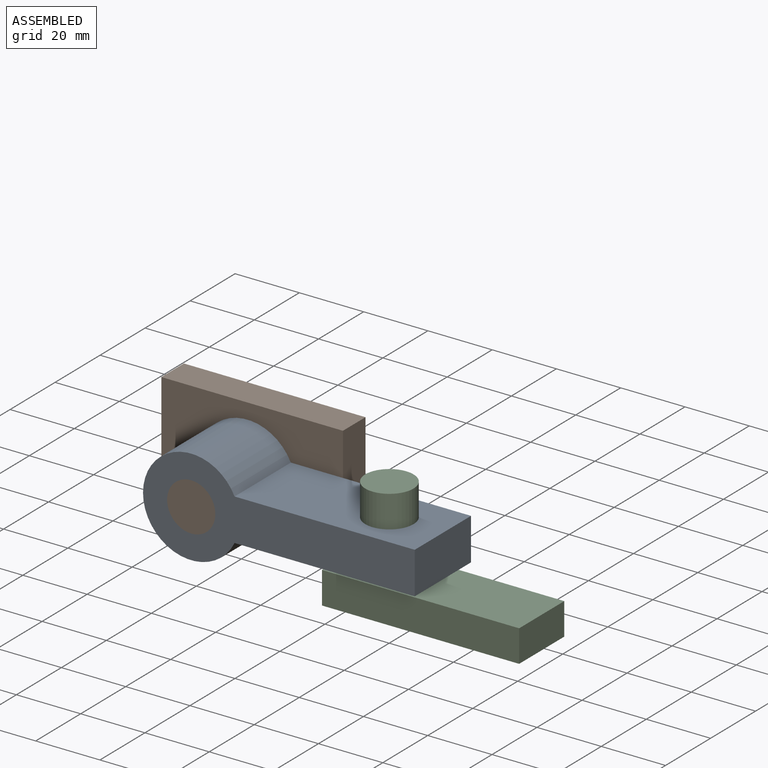
[diagram: assembled view]
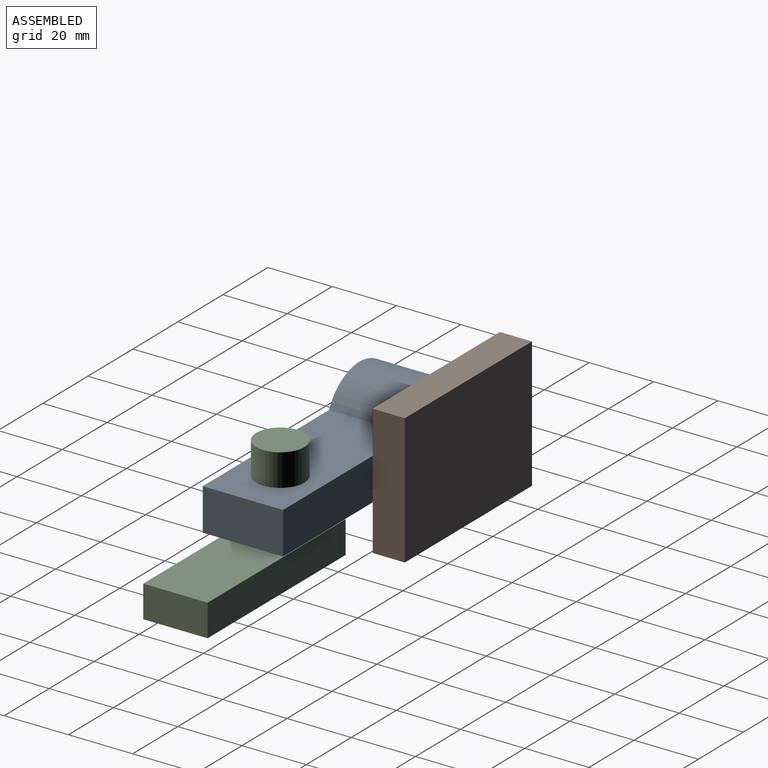
[diagram: assembled view, second angle]
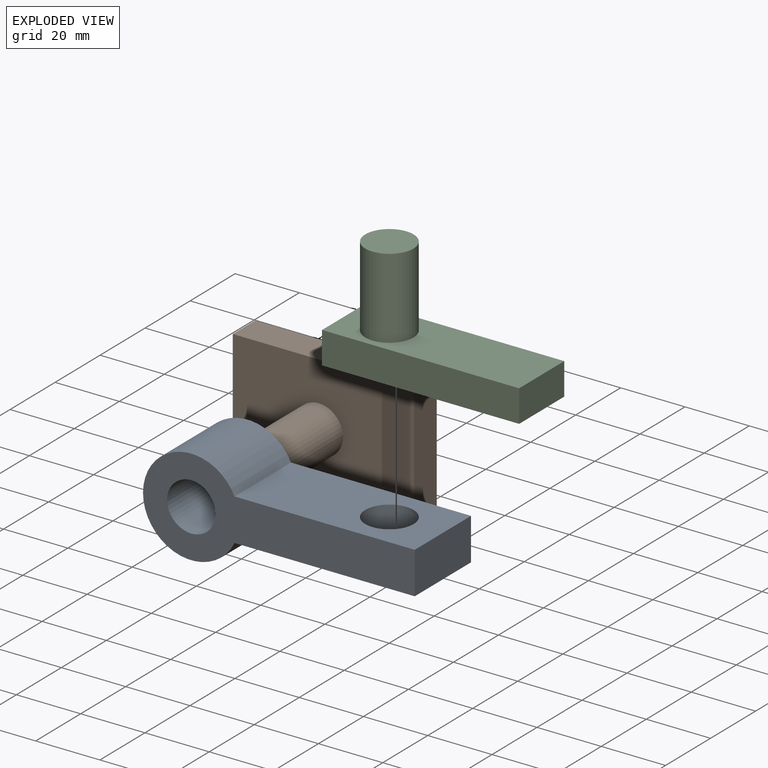
[diagram: exploded view]
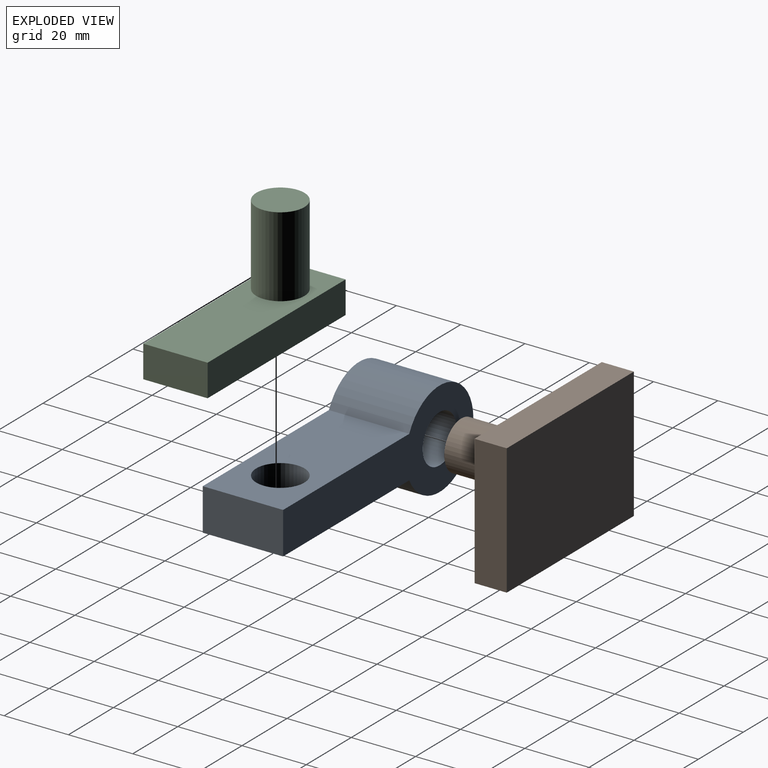
[diagram: exploded view, second angle]
ASSEMBLY  parts=3 mates=2
PART A: 8 faces, bbox 84.6x25x30 mm
  f0: cylinder r=7.5mm len=25mm, axis (0,1,0), area 1178.1mm2, adj f2,f3
  f1: cylinder r=15mm len=30mm, axis (0,1,0), area 2017.9mm2, adj f2,f3,f4,f5
  f2: plane 84.56x30mm, normal (0,-1,0), area 1250mm2, adj f0,f1,f4,f5,f6
  f3: plane 84.56x30mm, normal (0,1,0), area 1250mm2, adj f0,f1,f4,f5,f6
  f4: plane 56.06x25mm, normal (0,0,1), area 1224.7mm2, adj f1,f2,f3,f6,f7
  f5: plane 56.06x25mm, normal (0,0,-1), area 1224.7mm2, adj f1,f2,f3,f6,f7
  f6: plane 25x13.08mm, normal (1,0,0), area 326.9mm2, adj f2,f3,f4,f5
  f7: cylinder r=7.5mm len=15mm, axis (0,0,-1), area 616.2mm2, adj f4,f5
PART B: 8 faces, bbox 56.5x35x40.6 mm
  f0: plane 56.51x10mm, normal (0,0,1), area 565.1mm2, adj f1,f3,f4,f5
  f1: plane 40.59x10mm, normal (-1,0,0), area 405.9mm2, adj f0,f2,f4,f5
  f2: plane 56.51x10mm, normal (0,0,-1), area 565.1mm2, adj f1,f3,f4,f5
  f3: plane 40.59x10mm, normal (1,0,0), area 405.9mm2, adj f0,f2,f4,f5
  f4: plane 56.51x40.59mm, normal (0,-1,0), area 2117mm2, adj f0,f1,f2,f3,f6
  f5: plane 56.51x40.59mm, normal (0,1,0), area 2293.7mm2, adj f0,f1,f2,f3
  f6: cylinder r=7.5mm len=25mm, axis (0,1,0), area 1178.1mm2, adj f4,f7
  f7: plane 15x15mm, normal (0,-1,0), area 176.7mm2, adj f6
PART C: 8 faces, bbox 61.3x35x20 mm
  f0: cylinder r=7.5mm len=25mm, axis (0,1,0), area 1178.1mm2, adj f1,f7
  f1: plane 15x15mm, normal (0,1,0), area 176.7mm2, adj f0
  f2: plane 61.34x10mm, normal (0,0,1), area 613.4mm2, adj f3,f5,f6,f7
  f3: plane 20.04x10mm, normal (-1,0,0), area 200.4mm2, adj f2,f4,f6,f7
  f4: plane 61.34x10mm, normal (0,0,-1), area 613.4mm2, adj f3,f5,f6,f7
  f5: plane 20.04x10mm, normal (1,0,0), area 200.4mm2, adj f2,f4,f6,f7
  f6: plane 61.34x20.04mm, normal (0,-1,0), area 1229.3mm2, adj f2,f3,f4,f5
  f7: plane 61.34x20.04mm, normal (0,1,0), area 1052.5mm2, adj f0,f2,f3,f4,f5
PLACE A rot(axis=(1,0,0),180deg) t=(-40.36,-41.78,-13.84)mm
PLACE B t=(-40.36,-6.78,-13.84)mm fixed
PLACE C rot(axis=(1,0,0),90deg) t=(12.56,-29.28,2.7)mm
MATE revolute A.f0 <-> B.f6  axis (0,-1,0) through (-40.36,-16.78,-13.84)mm
MATE revolute A.f7 <-> C.f0  axis (0,0,1) through (12.56,-29.28,-7.3)mm
